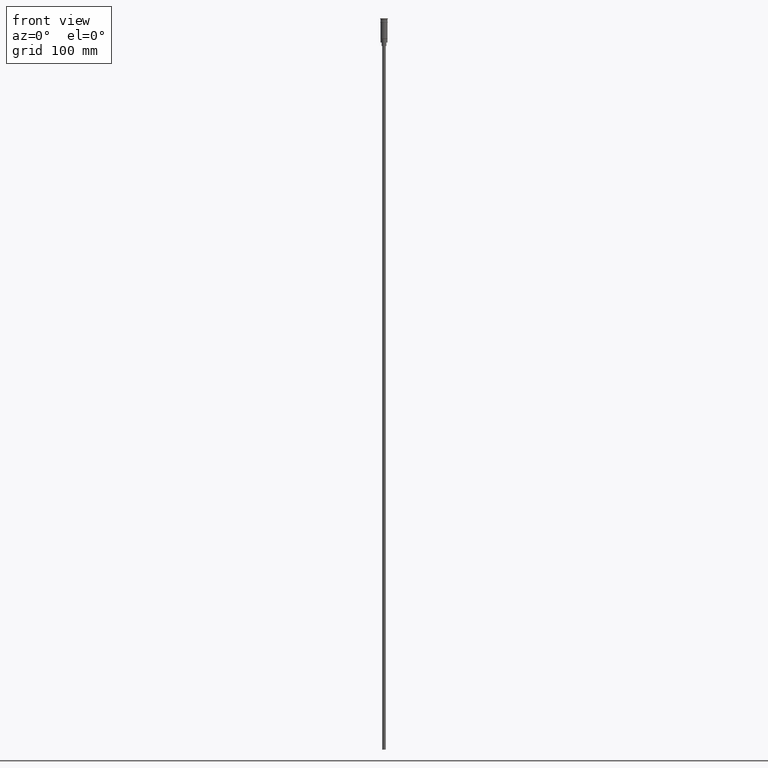
[diagram: clean part render]
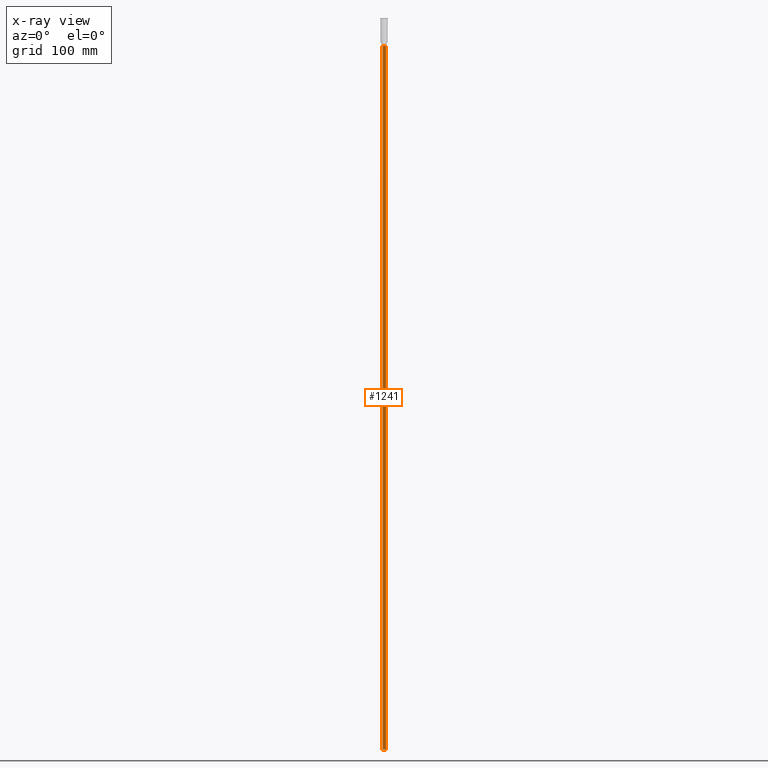
[diagram: x-ray — body ghosted, one internal face saturated and labeled with its STEP entity id]
A machine part, front view, then the same camera in x-ray: the body is ghosted and one INTERNAL B-rep face — a face not visible from any outside direction — is saturated and labeled: STEP entity #1241.
In plain terms, the highlighted cylindrical surface (edge-blend (fillet) strip) has radius 1.5 mm, axis along (-0, -0, 1).
Its self-contained STEP definition (entity closure, byte-faithful):
#14 = DIRECTION ( 'NONE',  ( -0.000000000000000000, -0.000000000000000000, 1.000000000000000000 ) ) ;
#27 = DIRECTION ( 'NONE',  ( -1.000000000000000000, 0.000000000000000000, 0.000000000000000000 ) ) ;
#166 = AXIS2_PLACEMENT_3D ( 'NONE', #1212, #1329, #969 ) ;
#180 = DIRECTION ( 'NONE',  ( -1.000000000000000000, 0.000000000000000000, 0.000000000000000000 ) ) ;
#258 = VERTEX_POINT ( 'NONE', #1587 ) ;
#265 = CARTESIAN_POINT ( 'NONE',  ( 1.500000000000000222, 0.000000000000000000, -620.4999999999998863 ) ) ;
#300 = CIRCLE ( 'NONE', #467, 1.500000000000000222 ) ;
#335 = CARTESIAN_POINT ( 'NONE',  ( -1.500000000000000222, 1.836970198721030181E-16, -620.4999999999998863 ) ) ;
#380 = VECTOR ( 'NONE', #475, 1000.000000000000000 ) ;
#414 = EDGE_CURVE ( 'NONE', #1518, #258, #1132, .T. ) ;
#467 = AXIS2_PLACEMENT_3D ( 'NONE', #1533, #1272, #27 ) ;
#475 = DIRECTION ( 'NONE',  ( -0.000000000000000000, -0.000000000000000000, 1.000000000000000000 ) ) ;
#490 = CARTESIAN_POINT ( 'NONE',  ( -1.500000000000000222, 1.836970198721030181E-16, -620.4999999999998863 ) ) ;
#521 = FACE_OUTER_BOUND ( 'NONE', #603, .T. ) ;
#569 = VERTEX_POINT ( 'NONE', #592 ) ;
#571 = CARTESIAN_POINT ( 'NONE',  ( 0.000000000000000000, 0.000000000000000000, -23.50000000000000000 ) ) ;
#573 = EDGE_CURVE ( 'NONE', #1218, #569, #1576, .T. ) ;
#592 = CARTESIAN_POINT ( 'NONE',  ( -1.500000000000000222, 1.836970198721030181E-16, -23.50000000000000000 ) ) ;
#603 = EDGE_LOOP ( 'NONE', ( #1395, #814, #1121, #918 ) ) ;
#618 = AXIS2_PLACEMENT_3D ( 'NONE', #571, #1166, #180 ) ;
#637 = CIRCLE ( 'NONE', #618, 1.500000000000000222 ) ;
#778 = CARTESIAN_POINT ( 'NONE',  ( 1.500000000000000222, 0.000000000000000000, -620.4999999999998863 ) ) ;
#814 = ORIENTED_EDGE ( 'NONE', *, *, #573, .T. ) ;
#836 = CYLINDRICAL_SURFACE ( 'NONE', #166, 1.500000000000000222 ) ;
#918 = ORIENTED_EDGE ( 'NONE', *, *, #414, .F. ) ;
#969 = DIRECTION ( 'NONE',  ( 1.000000000000000000, 0.000000000000000000, 0.000000000000000000 ) ) ;
#1121 = ORIENTED_EDGE ( 'NONE', *, *, #1163, .T. ) ;
#1132 = LINE ( 'NONE', #265, #1485 ) ;
#1163 = EDGE_CURVE ( 'NONE', #569, #258, #637, .T. ) ;
#1166 = DIRECTION ( 'NONE',  ( 0.000000000000000000, 0.000000000000000000, -1.000000000000000000 ) ) ;
#1212 = CARTESIAN_POINT ( 'NONE',  ( 0.000000000000000000, 0.000000000000000000, -620.4999999999998863 ) ) ;
#1218 = VERTEX_POINT ( 'NONE', #335 ) ;
#1241 = ADVANCED_FACE ( 'NONE', ( #521 ), #836, .T. ) ;
#1272 = DIRECTION ( 'NONE',  ( 0.000000000000000000, 0.000000000000000000, -1.000000000000000000 ) ) ;
#1329 = DIRECTION ( 'NONE',  ( -0.000000000000000000, -0.000000000000000000, 1.000000000000000000 ) ) ;
#1395 = ORIENTED_EDGE ( 'NONE', *, *, #1476, .F. ) ;
#1476 = EDGE_CURVE ( 'NONE', #1218, #1518, #300, .T. ) ;
#1485 = VECTOR ( 'NONE', #14, 1000.000000000000000 ) ;
#1518 = VERTEX_POINT ( 'NONE', #778 ) ;
#1533 = CARTESIAN_POINT ( 'NONE',  ( 0.000000000000000000, 0.000000000000000000, -620.4999999999998863 ) ) ;
#1576 = LINE ( 'NONE', #490, #380 ) ;
#1587 = CARTESIAN_POINT ( 'NONE',  ( 1.500000000000000222, 0.000000000000000000, -23.50000000000000000 ) ) ;